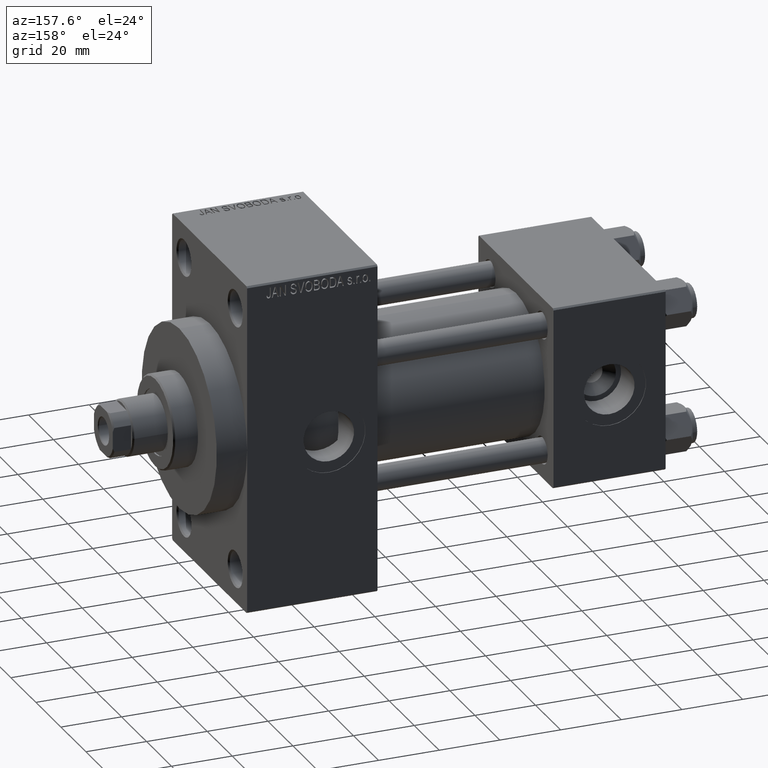
[diagram: clean part render]
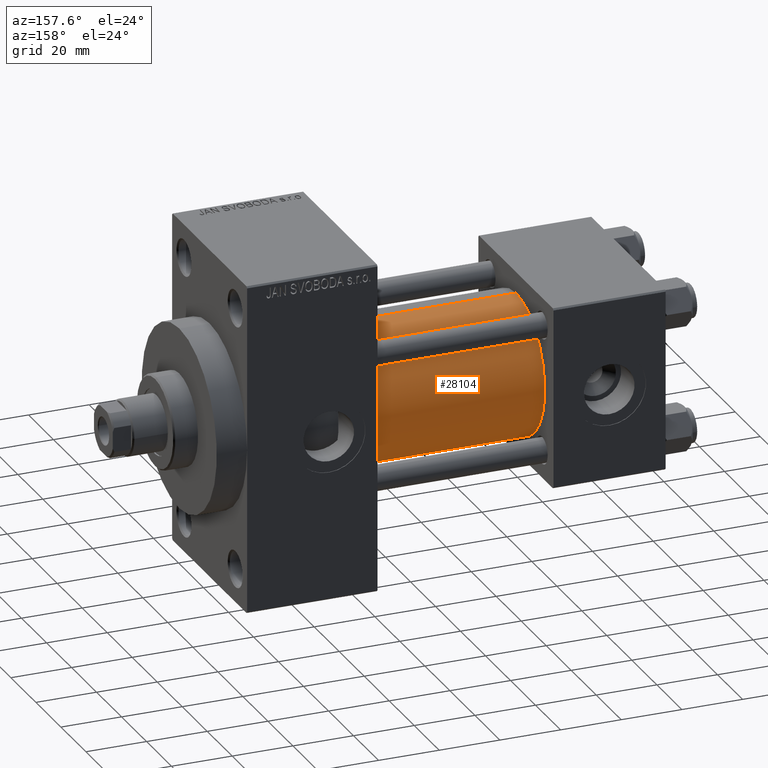
[diagram: same view with one face highlighted and labeled with its STEP entity id]
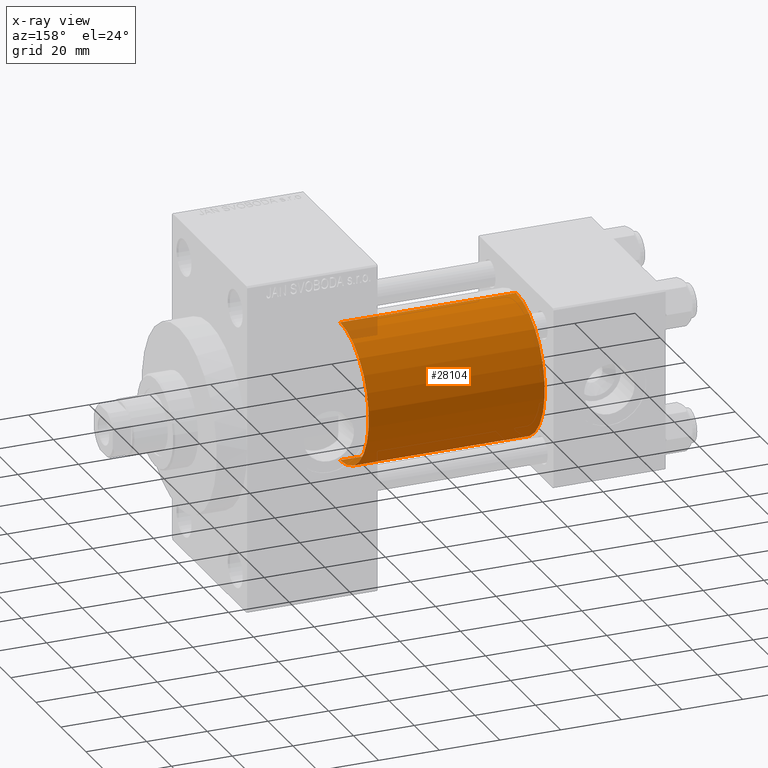
[diagram: x-ray of the same camera — body ghosted, the highlighted face saturated]
A machine part, auxiliary view. The second image highlights one B-rep face of the part: STEP entity #28104.
The next image is the same camera in x-ray: the body ghosted, the highlighted face saturated — about 3% of this face is hidden behind the body in this view.
In plain terms, the highlighted cylindrical surface (partial cylindrical patch) has radius 23 mm, axis along (-1, -0, -0).
Its self-contained STEP definition (entity closure, byte-faithful):
#369 = EDGE_CURVE ( 'NONE', #19794, #4797, #30517, .T. ) ;
#378 = CARTESIAN_POINT ( 'NONE',  ( 37.00000000000000000, -2.602085213965210642E-15, 23.00000000000000000 ) ) ;
#602 = VERTEX_POINT ( 'NONE', #378 ) ;
#2356 = LINE ( 'NONE', #9288, #12271 ) ;
#2601 = DIRECTION ( 'NONE',  ( -1.000000000000000000, -0.000000000000000000, -0.000000000000000000 ) ) ;
#4514 = AXIS2_PLACEMENT_3D ( 'NONE', #16670, #23601, #5691 ) ;
#4797 = VERTEX_POINT ( 'NONE', #20765 ) ;
#5691 = DIRECTION ( 'NONE',  ( 0.000000000000000000, 0.000000000000000000, -1.000000000000000000 ) ) ;
#6068 = DIRECTION ( 'NONE',  ( 0.000000000000000000, 0.000000000000000000, 1.000000000000000000 ) ) ;
#6523 = ORIENTED_EDGE ( 'NONE', *, *, #369, .F. ) ;
#9288 = CARTESIAN_POINT ( 'NONE',  ( 95.00000000000000000, 2.146024240737012665E-16, -23.00000000000000000 ) ) ;
#9466 = VECTOR ( 'NONE', #11325, 1000.000000000000000 ) ;
#10129 = AXIS2_PLACEMENT_3D ( 'NONE', #35687, #46447, #6068 ) ;
#11325 = DIRECTION ( 'NONE',  ( -1.000000000000000000, -0.000000000000000000, -0.000000000000000000 ) ) ;
#11684 = EDGE_CURVE ( 'NONE', #4797, #602, #15150, .T. ) ;
#12271 = VECTOR ( 'NONE', #2601, 1000.000000000000000 ) ;
#12524 = CYLINDRICAL_SURFACE ( 'NONE', #37047, 23.00000000000000000 ) ;
#15150 = LINE ( 'NONE', #25656, #9466 ) ;
#16670 = CARTESIAN_POINT ( 'NONE',  ( 95.00000000000000000, -2.602085213965210642E-15, 0.000000000000000000 ) ) ;
#18097 = ORIENTED_EDGE ( 'NONE', *, *, #37879, .T. ) ;
#19794 = VERTEX_POINT ( 'NONE', #35250 ) ;
#20765 = CARTESIAN_POINT ( 'NONE',  ( 95.00000000000000000, -2.602085213965210642E-15, 23.00000000000000000 ) ) ;
#23523 = CARTESIAN_POINT ( 'NONE',  ( 95.00000000000000000, -2.602085213965210642E-15, 0.000000000000000000 ) ) ;
#23601 = DIRECTION ( 'NONE',  ( 1.000000000000000000, 0.000000000000000000, 0.000000000000000000 ) ) ;
#25656 = CARTESIAN_POINT ( 'NONE',  ( 95.00000000000000000, -2.602085213965210642E-15, 23.00000000000000000 ) ) ;
#26242 = ORIENTED_EDGE ( 'NONE', *, *, #46301, .T. ) ;
#27089 = FACE_OUTER_BOUND ( 'NONE', #35586, .T. ) ;
#28104 = ADVANCED_FACE ( 'NONE', ( #27089 ), #12524, .T. ) ;
#30517 = CIRCLE ( 'NONE', #4514, 23.00000000000000000 ) ;
#31501 = CIRCLE ( 'NONE', #10129, 23.00000000000000000 ) ;
#34037 = DIRECTION ( 'NONE',  ( 0.000000000000000000, 0.000000000000000000, 1.000000000000000000 ) ) ;
#35250 = CARTESIAN_POINT ( 'NONE',  ( 95.00000000000000000, 2.146024240737012665E-16, -23.00000000000000000 ) ) ;
#35586 = EDGE_LOOP ( 'NONE', ( #6523, #18097, #26242, #36966 ) ) ;
#35687 = CARTESIAN_POINT ( 'NONE',  ( 37.00000000000000000, -2.602085213965210642E-15, 0.000000000000000000 ) ) ;
#36966 = ORIENTED_EDGE ( 'NONE', *, *, #11684, .F. ) ;
#37047 = AXIS2_PLACEMENT_3D ( 'NONE', #23523, #41217, #34037 ) ;
#37879 = EDGE_CURVE ( 'NONE', #19794, #38364, #2356, .T. ) ;
#38364 = VERTEX_POINT ( 'NONE', #41383 ) ;
#41217 = DIRECTION ( 'NONE',  ( -1.000000000000000000, -0.000000000000000000, -0.000000000000000000 ) ) ;
#41383 = CARTESIAN_POINT ( 'NONE',  ( 37.00000000000000000, 2.146024240737012665E-16, -23.00000000000000000 ) ) ;
#46301 = EDGE_CURVE ( 'NONE', #38364, #602, #31501, .T. ) ;
#46447 = DIRECTION ( 'NONE',  ( 1.000000000000000000, -0.000000000000000000, 0.000000000000000000 ) ) ;